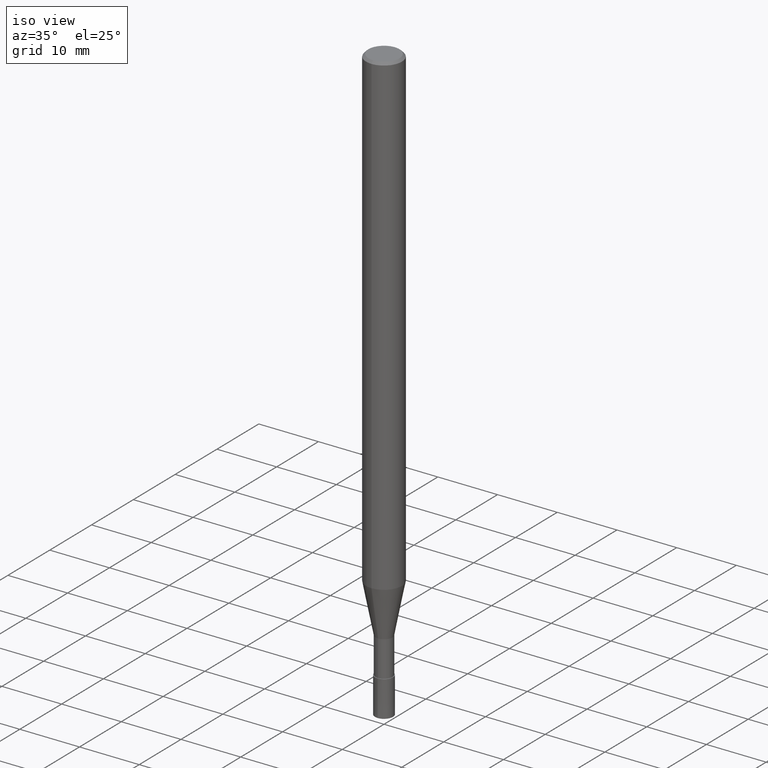
[diagram: clean part render]
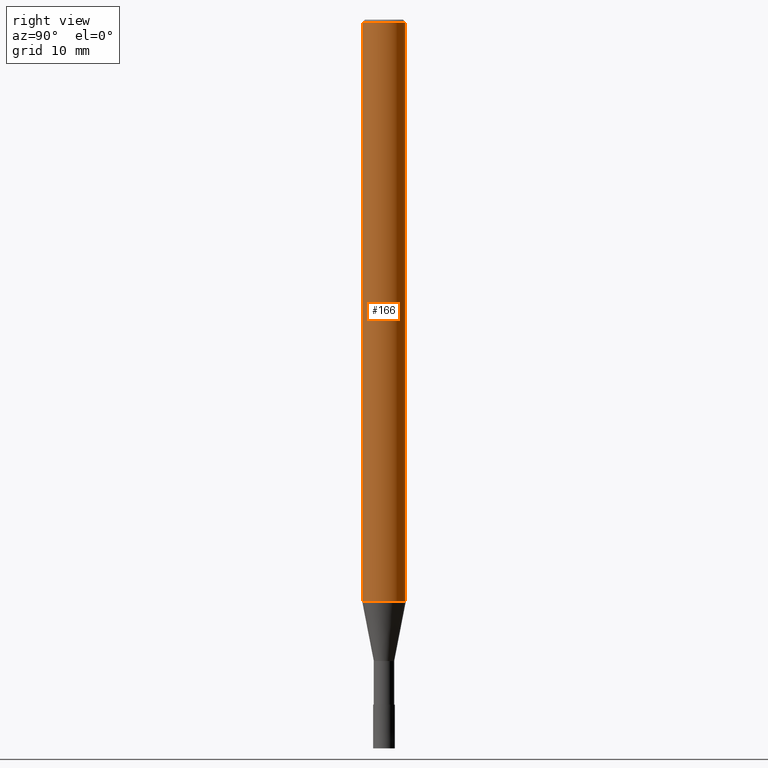
[diagram: tour spotlight — one face highlighted and labeled with its STEP entity id]
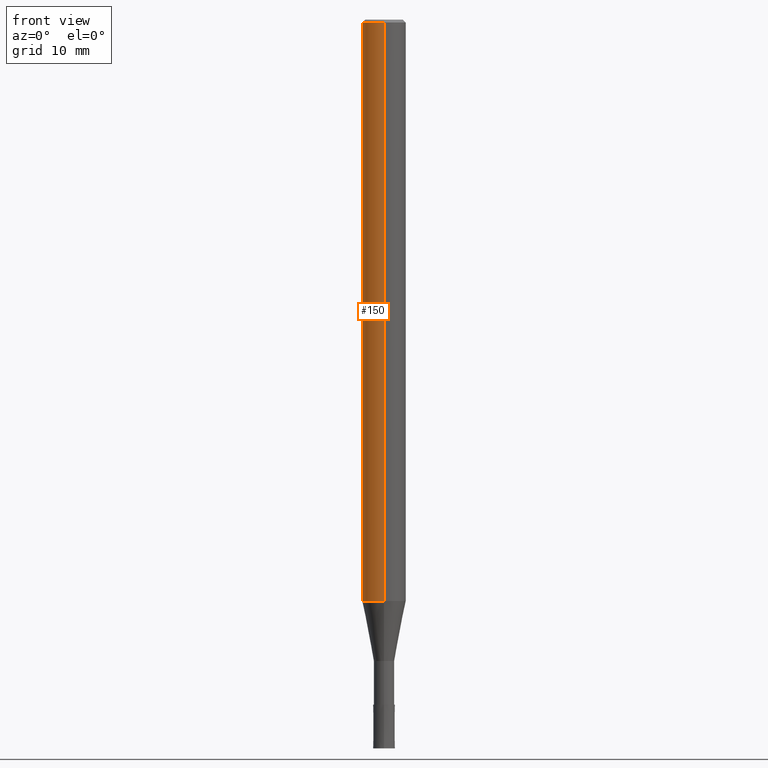
[diagram: tour spotlight — one face highlighted and labeled with its STEP entity id]
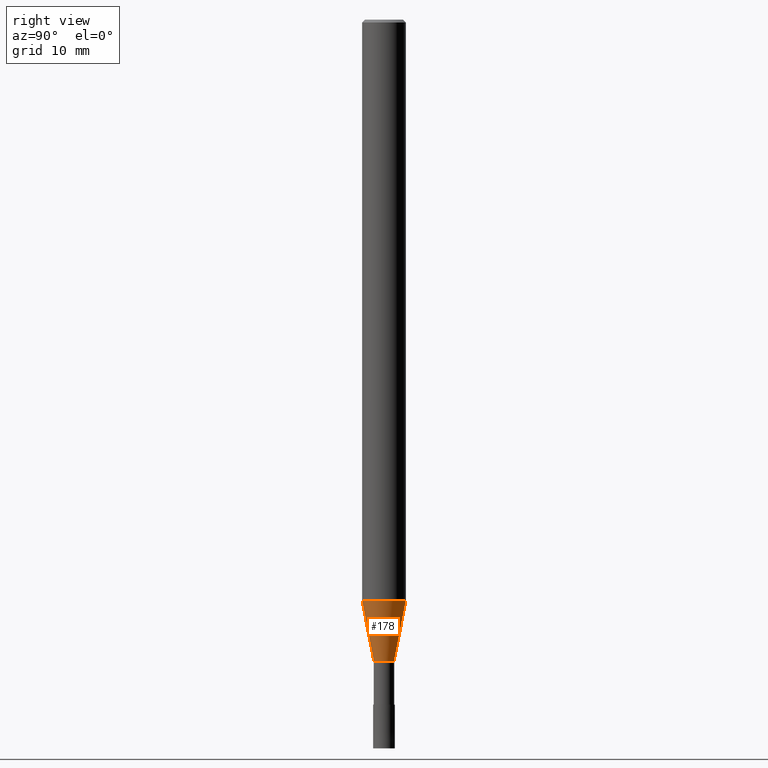
[diagram: tour spotlight — one face highlighted and labeled with its STEP entity id]
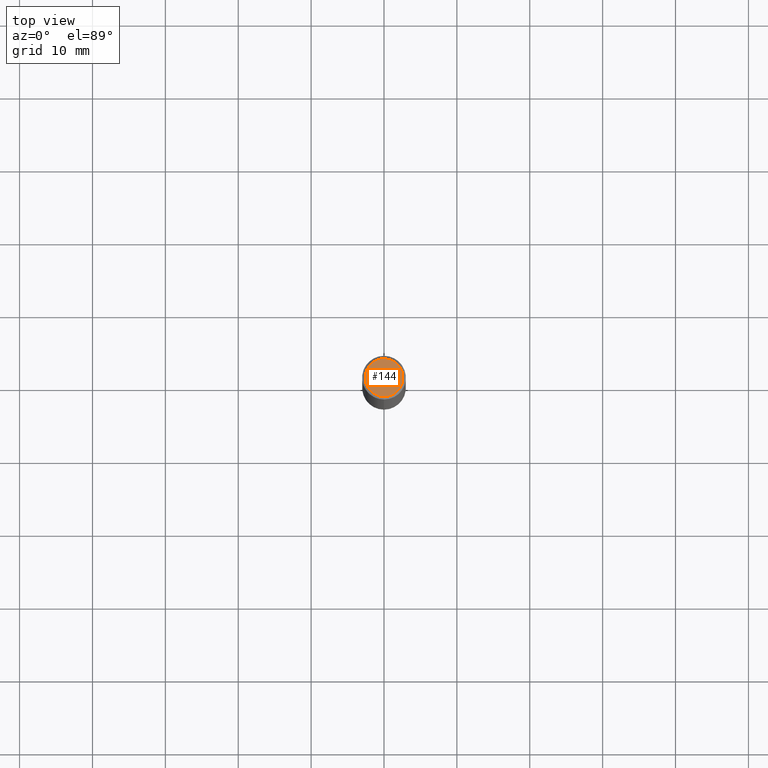
[diagram: tour spotlight — one face highlighted and labeled with its STEP entity id]
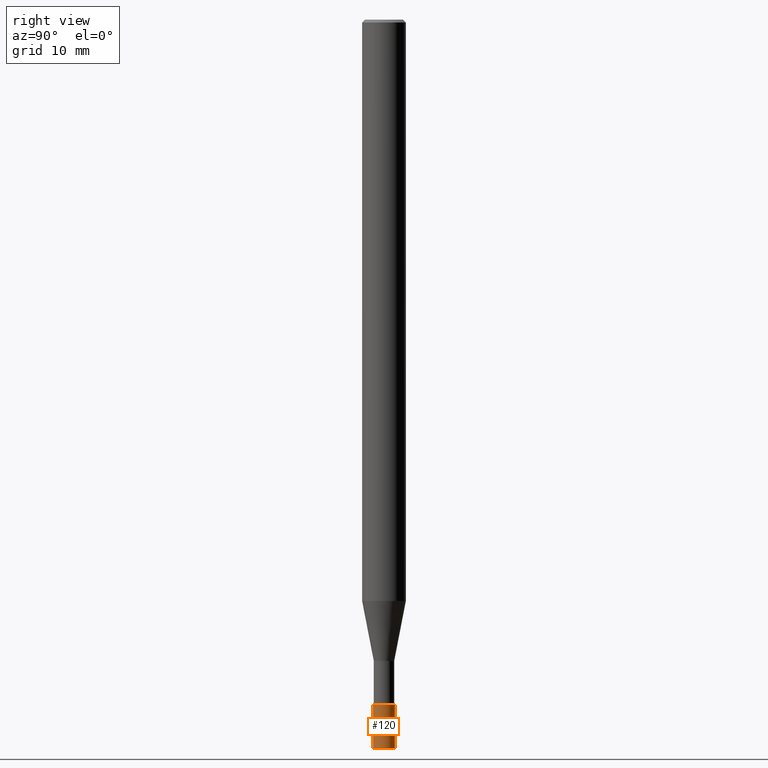
[diagram: tour spotlight — one face highlighted and labeled with its STEP entity id]
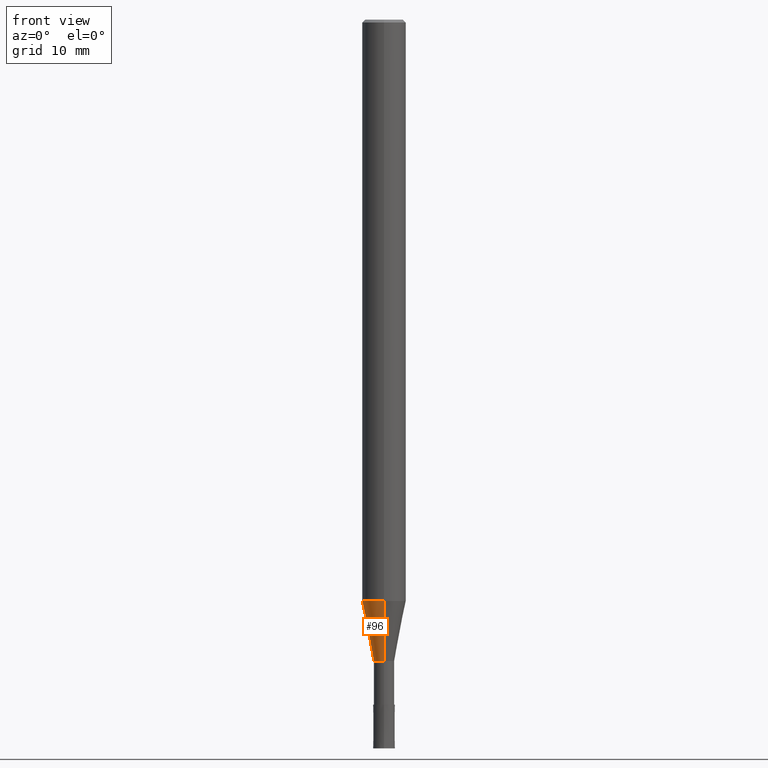
[diagram: tour spotlight — one face highlighted and labeled with its STEP entity id]
A machine part: a face-by-face anatomy tour. The part has 15 B-rep faces; the first image is the clean iso view, then the 6 largest visible faces are spotlighted one at a time (largest first), each with its STEP entity span.

Face 1 — right view, entity #166. In plain terms, the highlighted cylindrical surface (edge-blend (fillet) strip) has radius 3 mm, axis along (-0, -0, 1).
Definition (entity closure, byte-faithful):
#118=EDGE_CURVE('',#148,#192,#259,.T.);
#134=VERTEX_POINT('',#277);
#138=EDGE_CURVE('',#172,#148,#281,.T.);
#148=VERTEX_POINT('',#292);
#166=ADVANCED_FACE('',(#313),#314,.T.);
#172=VERTEX_POINT('',#321);
#192=VERTEX_POINT('',#342);
#206=EDGE_CURVE('',#172,#134,#359,.T.);
#208=EDGE_CURVE('',#192,#134,#361,.T.);
#259=CIRCLE('',#413,3.0);
#277=CARTESIAN_POINT('',(3.67381906146713E-016,-3.0,-0.400000000000006));
#281=LINE('',#441,#442);
#292=CARTESIAN_POINT('',(0.0,3.0,-79.769));
#313=FACE_OUTER_BOUND('',#480,.T.);
#314=CYLINDRICAL_SURFACE('',#481,3.0);
#321=CARTESIAN_POINT('',(0.0,3.0,-0.400000000000006));
#342=CARTESIAN_POINT('',(3.67381906146713E-016,-3.0,-79.769));
#359=CIRCLE('',#536,3.0);
#361=LINE('',#539,#540);
#413=AXIS2_PLACEMENT_3D('',#586,#587,#588);
#441=CARTESIAN_POINT('',(-3.67381906146713E-016,3.0,-40.0845));
#442=VECTOR('',#613,1.0);
#480=EDGE_LOOP('',(#652,#653,#654,#655));
#481=AXIS2_PLACEMENT_3D('',#656,#657,#658);
#536=AXIS2_PLACEMENT_3D('',#710,#711,#712);
#539=CARTESIAN_POINT('',(3.67381906146713E-016,-3.0,-40.0845));
#540=VECTOR('',#713,1.0);
#586=CARTESIAN_POINT('',(0.0,0.0,-79.769));
#587=DIRECTION('',(0.0,0.0,-1.0));
#588=DIRECTION('',(0.0,1.0,0.0));
#613=DIRECTION('',(0.0,0.0,-1.0));
#652=ORIENTED_EDGE('',*,*,#138,.F.);
#653=ORIENTED_EDGE('',*,*,#206,.T.);
#654=ORIENTED_EDGE('',*,*,#208,.F.);
#655=ORIENTED_EDGE('',*,*,#118,.F.);
#656=CARTESIAN_POINT('',(0.0,0.0,-40.0845));
#657=DIRECTION('',(-0.0,-0.0,1.0));
#658=DIRECTION('',(0.0,1.0,0.0));
#710=CARTESIAN_POINT('',(0.0,0.0,-0.400000000000006));
#711=DIRECTION('',(0.0,0.0,-1.0));
#712=DIRECTION('',(0.0,1.0,0.0));
#713=DIRECTION('',(-0.0,-0.0,1.0));

Face 2 — front view, entity #150. In plain terms, the highlighted cylindrical surface (edge-blend (fillet) strip) has radius 3 mm, axis along (-0, -0, 1).
Definition (entity closure, byte-faithful):
#102=EDGE_CURVE('',#192,#148,#241,.T.);
#110=EDGE_CURVE('',#134,#172,#250,.T.);
#134=VERTEX_POINT('',#277);
#138=EDGE_CURVE('',#172,#148,#281,.T.);
#148=VERTEX_POINT('',#292);
#150=ADVANCED_FACE('',(#294),#295,.T.);
#172=VERTEX_POINT('',#321);
#192=VERTEX_POINT('',#342);
#208=EDGE_CURVE('',#192,#134,#361,.T.);
#241=CIRCLE('',#390,3.0);
#250=CIRCLE('',#403,3.0);
#277=CARTESIAN_POINT('',(3.67381906146713E-016,-3.0,-0.400000000000006));
#281=LINE('',#441,#442);
#292=CARTESIAN_POINT('',(0.0,3.0,-79.769));
#294=FACE_OUTER_BOUND('',#457,.T.);
#295=CYLINDRICAL_SURFACE('',#458,3.0);
#321=CARTESIAN_POINT('',(0.0,3.0,-0.400000000000006));
#342=CARTESIAN_POINT('',(3.67381906146713E-016,-3.0,-79.769));
#361=LINE('',#539,#540);
#390=AXIS2_PLACEMENT_3D('',#560,#561,#562);
#403=AXIS2_PLACEMENT_3D('',#575,#576,#577);
#441=CARTESIAN_POINT('',(-3.67381906146713E-016,3.0,-40.0845));
#442=VECTOR('',#613,1.0);
#457=EDGE_LOOP('',(#622,#623,#624,#625));
#458=AXIS2_PLACEMENT_3D('',#626,#627,#628);
#539=CARTESIAN_POINT('',(3.67381906146713E-016,-3.0,-40.0845));
#540=VECTOR('',#713,1.0);
#560=CARTESIAN_POINT('',(0.0,0.0,-79.769));
#561=DIRECTION('',(0.0,0.0,-1.0));
#562=DIRECTION('',(0.0,1.0,0.0));
#575=CARTESIAN_POINT('',(0.0,0.0,-0.400000000000006));
#576=DIRECTION('',(0.0,0.0,-1.0));
#577=DIRECTION('',(0.0,1.0,0.0));
#613=DIRECTION('',(0.0,0.0,-1.0));
#622=ORIENTED_EDGE('',*,*,#138,.T.);
#623=ORIENTED_EDGE('',*,*,#102,.F.);
#624=ORIENTED_EDGE('',*,*,#208,.T.);
#625=ORIENTED_EDGE('',*,*,#110,.T.);
#626=CARTESIAN_POINT('',(0.0,0.0,-40.0845));
#627=DIRECTION('',(-0.0,-0.0,1.0));
#628=DIRECTION('',(0.0,1.0,0.0));
#713=DIRECTION('',(-0.0,-0.0,1.0));

Face 3 — right view, entity #178. In plain terms, the highlighted conical surface has half-angle 11 deg.
Definition (entity closure, byte-faithful):
#92=EDGE_CURVE('',#114,#132,#229,.T.);
#114=VERTEX_POINT('',#255);
#122=EDGE_CURVE('',#132,#188,#264,.T.);
#132=VERTEX_POINT('',#275);
#156=EDGE_CURVE('',#188,#176,#301,.T.);
#176=VERTEX_POINT('',#325);
#178=ADVANCED_FACE('',(#327),#328,.T.);
#182=EDGE_CURVE('',#114,#176,#332,.T.);
#188=VERTEX_POINT('',#338);
#229=LINE('',#375,#376);
#255=CARTESIAN_POINT('',(0.0,2.99995,-79.769));
#264=CIRCLE('',#419,1.39995);
#275=CARTESIAN_POINT('',(0.0,1.39995,-88.0));
#301=LINE('',#466,#467);
#325=CARTESIAN_POINT('',(3.67375783114944E-016,-2.99995,-79.769));
#327=FACE_OUTER_BOUND('',#496,.T.);
#328=CONICAL_SURFACE('',#497,2.19995,0.191992735564386);
#332=CIRCLE('',#503,2.99995);
#338=CARTESIAN_POINT('',(1.71438766503364E-016,-1.39995,-88.0));
#375=CARTESIAN_POINT('',(-2.69407274809154E-016,2.19995,-83.8845));
#376=VECTOR('',#542,1.0);
#419=AXIS2_PLACEMENT_3D('',#597,#598,#599);
#466=CARTESIAN_POINT('',(2.69407274809154E-016,-2.19995,-83.8845));
#467=VECTOR('',#631,1.0);
#496=EDGE_LOOP('',(#667,#668,#669,#670));
#497=AXIS2_PLACEMENT_3D('',#671,#672,#673);
#503=AXIS2_PLACEMENT_3D('',#677,#678,#679);
#542=DIRECTION('',(2.33673743245985E-017,-0.190815393466331,-0.981625939763355));
#597=CARTESIAN_POINT('',(0.0,0.0,-88.0));
#598=DIRECTION('',(0.0,0.0,-1.0));
#599=DIRECTION('',(0.0,1.0,0.0));
#631=DIRECTION('',(2.33673743245985E-017,-0.190815393466331,0.981625939763355));
#667=ORIENTED_EDGE('',*,*,#92,.F.);
#668=ORIENTED_EDGE('',*,*,#182,.T.);
#669=ORIENTED_EDGE('',*,*,#156,.F.);
#670=ORIENTED_EDGE('',*,*,#122,.F.);
#671=CARTESIAN_POINT('',(0.0,0.0,-83.8845));
#672=DIRECTION('',(-0.0,-0.0,1.0));
#673=DIRECTION('',(0.0,1.0,0.0));
#677=CARTESIAN_POINT('',(0.0,0.0,-79.769));
#678=DIRECTION('',(0.0,0.0,-1.0));
#679=DIRECTION('',(0.0,1.0,0.0));

Face 4 — top view, entity #144. In plain terms, the highlighted planar face has unit normal (-0, 0, 1).
Definition (entity closure, byte-faithful):
#136=VERTEX_POINT('',#279);
#144=ADVANCED_FACE('',(#287),#288,.T.);
#146=VERTEX_POINT('',#290);
#190=EDGE_CURVE('',#146,#136,#340,.T.);
#202=EDGE_CURVE('',#136,#146,#355,.T.);
#279=CARTESIAN_POINT('',(3.18397651993818E-016,-2.6,0.0));
#287=FACE_OUTER_BOUND('',#450,.T.);
#288=PLANE('',#451);
#290=CARTESIAN_POINT('',(0.0,2.6,0.0));
#340=CIRCLE('',#512,2.6);
#355=CIRCLE('',#529,2.6);
#450=EDGE_LOOP('',(#616,#617));
#451=AXIS2_PLACEMENT_3D('',#618,#619,#620);
#512=AXIS2_PLACEMENT_3D('',#684,#685,#686);
#529=AXIS2_PLACEMENT_3D('',#706,#707,#708);
#616=ORIENTED_EDGE('',*,*,#190,.F.);
#617=ORIENTED_EDGE('',*,*,#202,.F.);
#618=CARTESIAN_POINT('',(0.0,1.3,0.0));
#619=DIRECTION('',(-0.0,0.0,1.0));
#620=DIRECTION('',(0.0,-1.0,0.0));
#684=CARTESIAN_POINT('',(0.0,0.0,0.0));
#685=DIRECTION('',(0.0,0.0,-1.0));
#686=DIRECTION('',(0.0,1.0,0.0));
#706=CARTESIAN_POINT('',(0.0,0.0,0.0));
#707=DIRECTION('',(0.0,0.0,-1.0));
#708=DIRECTION('',(0.0,1.0,0.0));

Face 5 — right view, entity #120. In plain terms, the highlighted conical surface has half-angle 0.001 deg.
Definition (entity closure, byte-faithful):
#98=EDGE_CURVE('',#196,#158,#237,.T.);
#104=EDGE_CURVE('',#196,#168,#243,.T.);
#120=ADVANCED_FACE('',(#261),#262,.T.);
#130=EDGE_CURVE('',#142,#158,#273,.T.);
#142=VERTEX_POINT('',#285);
#158=VERTEX_POINT('',#303);
#168=VERTEX_POINT('',#316);
#196=VERTEX_POINT('',#347);
#198=EDGE_CURVE('',#168,#142,#349,.T.);
#237=CIRCLE('',#385,1.4999);
#243=LINE('',#393,#394);
#261=FACE_OUTER_BOUND('',#415,.T.);
#262=CONICAL_SURFACE('',#416,1.49995,1.66666666651216E-005);
#273=LINE('',#431,#432);
#285=CARTESIAN_POINT('',(1.83690953073357E-016,-1.5,-100.0));
#303=CARTESIAN_POINT('',(1.83678707009818E-016,-1.4999,-94.0));
#316=CARTESIAN_POINT('',(0.0,1.5,-100.0));
#347=CARTESIAN_POINT('',(0.0,1.4999,-94.0));
#349=CIRCLE('',#522,1.5);
#385=AXIS2_PLACEMENT_3D('',#557,#558,#559);
#393=CARTESIAN_POINT('',(-1.83684830041587E-016,1.49995,-97.0));
#394=VECTOR('',#563,1.0);
#415=EDGE_LOOP('',(#590,#591,#592,#593));
#416=AXIS2_PLACEMENT_3D('',#594,#595,#596);
#431=CARTESIAN_POINT('',(1.83684830041587E-016,-1.49995,-97.0));
#432=VECTOR('',#612,1.0);
#522=AXIS2_PLACEMENT_3D('',#695,#696,#697);
#557=CARTESIAN_POINT('',(0.0,0.0,-94.0));
#558=DIRECTION('',(0.0,0.0,-1.0));
#559=DIRECTION('',(0.0,1.0,0.0));
#563=DIRECTION('',(-2.04101058942026E-021,1.666666666435E-005,-0.999999999861111));
#590=ORIENTED_EDGE('',*,*,#104,.F.);
#591=ORIENTED_EDGE('',*,*,#98,.T.);
#592=ORIENTED_EDGE('',*,*,#130,.F.);
#593=ORIENTED_EDGE('',*,*,#198,.F.);
#594=CARTESIAN_POINT('',(0.0,0.0,-97.0));
#595=DIRECTION('',(0.0,-0.0,-1.0));
#596=DIRECTION('',(0.0,1.0,0.0));
#612=DIRECTION('',(-2.04101058942026E-021,1.666666666435E-005,0.999999999861111));
#695=CARTESIAN_POINT('',(0.0,0.0,-100.0));
#696=DIRECTION('',(0.0,0.0,-1.0));
#697=DIRECTION('',(0.0,1.0,0.0));

Face 6 — front view, entity #96. In plain terms, the highlighted conical surface has half-angle 11 deg.
Definition (entity closure, byte-faithful):
#92=EDGE_CURVE('',#114,#132,#229,.T.);
#96=ADVANCED_FACE('',(#234),#235,.T.);
#114=VERTEX_POINT('',#255);
#132=VERTEX_POINT('',#275);
#156=EDGE_CURVE('',#188,#176,#301,.T.);
#176=VERTEX_POINT('',#325);
#180=EDGE_CURVE('',#188,#132,#330,.T.);
#184=EDGE_CURVE('',#176,#114,#334,.T.);
#188=VERTEX_POINT('',#338);
#229=LINE('',#375,#376);
#234=FACE_OUTER_BOUND('',#381,.T.);
#235=CONICAL_SURFACE('',#382,2.19995,0.191992735564386);
#255=CARTESIAN_POINT('',(0.0,2.99995,-79.769));
#275=CARTESIAN_POINT('',(0.0,1.39995,-88.0));
#301=LINE('',#466,#467);
#325=CARTESIAN_POINT('',(3.67375783114944E-016,-2.99995,-79.769));
#330=CIRCLE('',#500,1.39995);
#334=CIRCLE('',#506,2.99995);
#338=CARTESIAN_POINT('',(1.71438766503364E-016,-1.39995,-88.0));
#375=CARTESIAN_POINT('',(-2.69407274809154E-016,2.19995,-83.8845));
#376=VECTOR('',#542,1.0);
#381=EDGE_LOOP('',(#550,#551,#552,#553));
#382=AXIS2_PLACEMENT_3D('',#554,#555,#556);
#466=CARTESIAN_POINT('',(2.69407274809154E-016,-2.19995,-83.8845));
#467=VECTOR('',#631,1.0);
#500=AXIS2_PLACEMENT_3D('',#674,#675,#676);
#506=AXIS2_PLACEMENT_3D('',#680,#681,#682);
#542=DIRECTION('',(2.33673743245985E-017,-0.190815393466331,-0.981625939763355));
#550=ORIENTED_EDGE('',*,*,#92,.T.);
#551=ORIENTED_EDGE('',*,*,#180,.F.);
#552=ORIENTED_EDGE('',*,*,#156,.T.);
#553=ORIENTED_EDGE('',*,*,#184,.T.);
#554=CARTESIAN_POINT('',(0.0,0.0,-83.8845));
#555=DIRECTION('',(-0.0,-0.0,1.0));
#556=DIRECTION('',(0.0,1.0,0.0));
#631=DIRECTION('',(2.33673743245985E-017,-0.190815393466331,0.981625939763355));
#674=CARTESIAN_POINT('',(0.0,0.0,-88.0));
#675=DIRECTION('',(0.0,0.0,-1.0));
#676=DIRECTION('',(0.0,1.0,0.0));
#680=CARTESIAN_POINT('',(0.0,0.0,-79.769));
#681=DIRECTION('',(0.0,0.0,-1.0));
#682=DIRECTION('',(0.0,1.0,0.0));